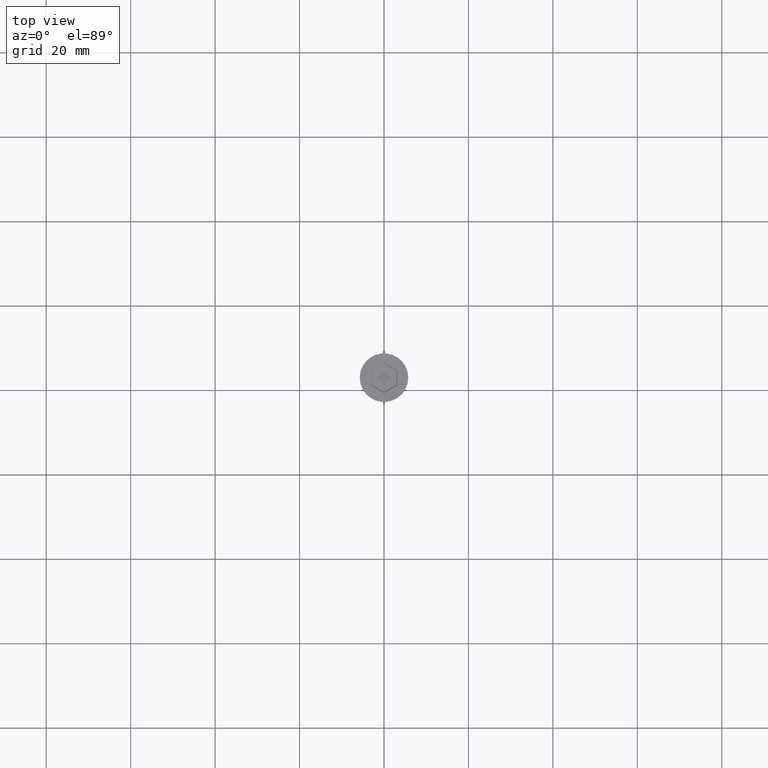
[diagram: clean part render]
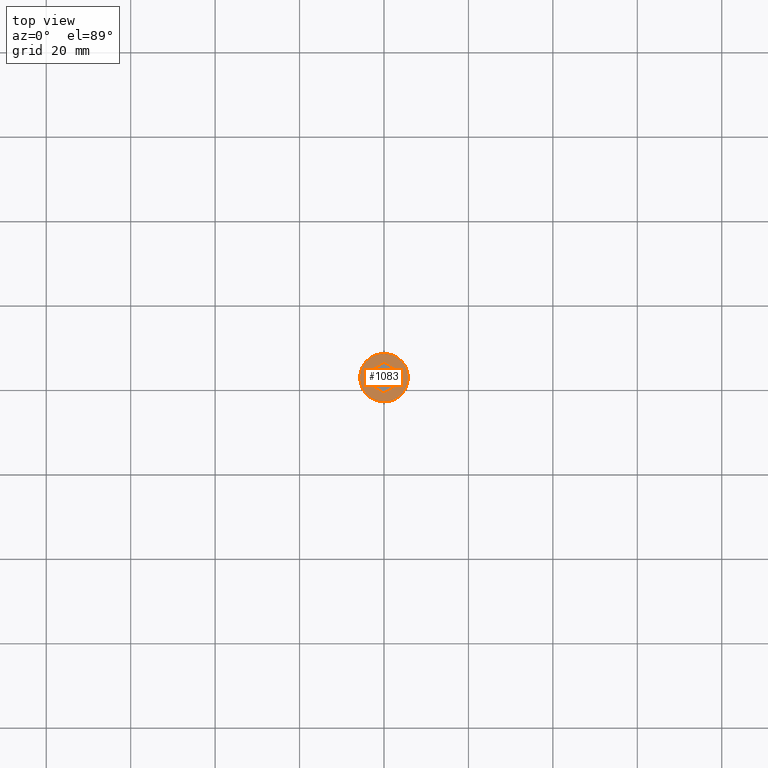
[diagram: same view with one face highlighted and labeled with its STEP entity id]
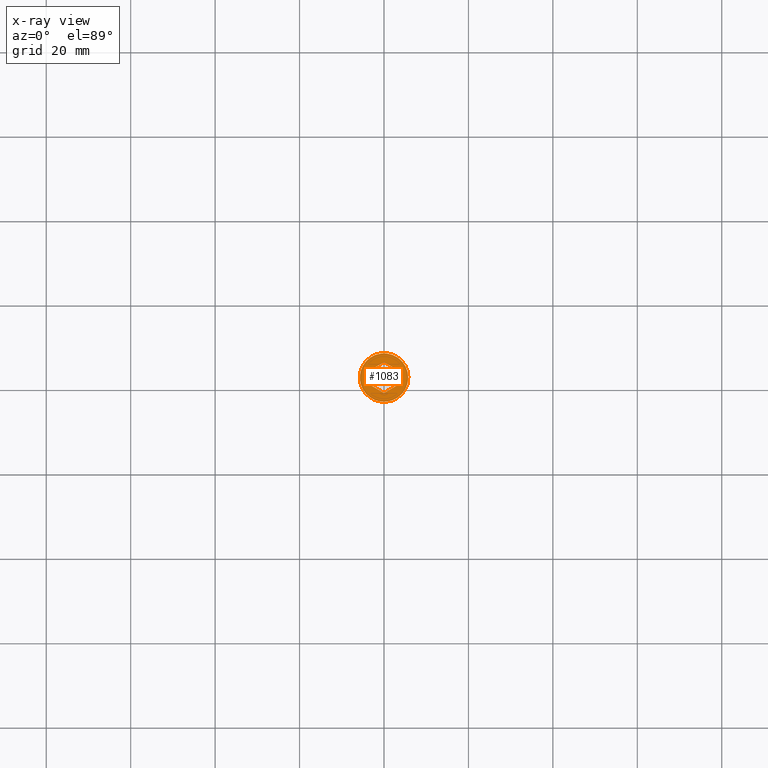
[diagram: x-ray of the same camera — body ghosted, the highlighted face saturated]
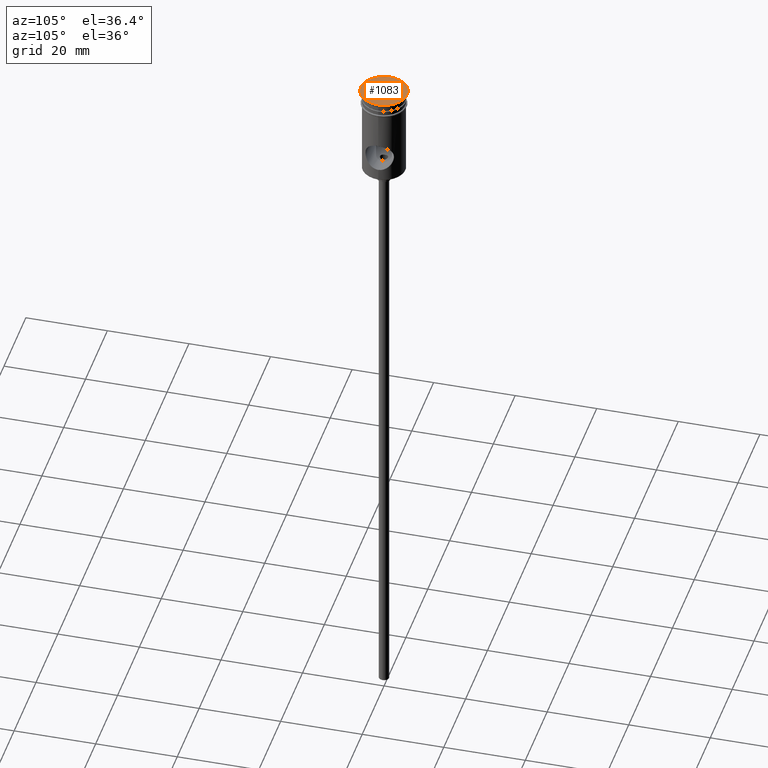
[diagram: same view with one face highlighted and labeled with its STEP entity id]
A machine part, top view. The second image highlights one B-rep face of the part: STEP entity #1083.
The next image is the same camera in x-ray: the body ghosted, the highlighted face saturated — about 0% of this face is hidden behind the body in this view.
A second angle (auxiliary view) of the same face is appended — the face is thin or edge-on in the first view.
In plain terms, the highlighted planar face has unit normal (0, -0, 1).
Its self-contained STEP definition (entity closure, byte-faithful):
#58 = DIRECTION ( 'NONE',  ( 1.000000000000000000, 0.000000000000000000, 0.000000000000000000 ) ) ;
#69 = AXIS2_PLACEMENT_3D ( 'NONE', #576, #1279, #724 ) ;
#93 = CARTESIAN_POINT ( 'NONE',  ( -3.049999999999989608, -1.876388374866265085, 0.000000000000000000 ) ) ;
#114 = DIRECTION ( 'NONE',  ( 0.8660254037844385966, 0.5000000000000001110, 0.000000000000000000 ) ) ;
#145 = EDGE_CURVE ( 'NONE', #860, #631, #1337, .T. ) ;
#151 = EDGE_CURVE ( 'NONE', #1099, #349, #607, .T. ) ;
#169 = LINE ( 'NONE', #1187, #712 ) ;
#238 = CARTESIAN_POINT ( 'NONE',  ( 3.149999999999978151, -1.818653347947309262, 0.000000000000000000 ) ) ;
#291 = DIRECTION ( 'NONE',  ( -0.8660254037844387076, -0.4999999999999998890, 0.000000000000000000 ) ) ;
#323 = ORIENTED_EDGE ( 'NONE', *, *, #145, .T. ) ;
#327 = DIRECTION ( 'NONE',  ( 0.000000000000000000, 1.000000000000000000, 0.000000000000000000 ) ) ;
#349 = VERTEX_POINT ( 'NONE', #1354 ) ;
#359 = DIRECTION ( 'NONE',  ( -2.546295930062981593E-16, -1.000000000000000000, 0.000000000000000000 ) ) ;
#363 = CARTESIAN_POINT ( 'NONE',  ( 0.000000000000000000, 0.000000000000000000, 0.000000000000000000 ) ) ;
#386 = AXIS2_PLACEMENT_3D ( 'NONE', #363, #1253, #704 ) ;
#438 = CARTESIAN_POINT ( 'NONE',  ( 0.09999999999998870903, -3.579571668975661591, 0.000000000000000000 ) ) ;
#461 = EDGE_CURVE ( 'NONE', #631, #860, #736, .T. ) ;
#507 = EDGE_CURVE ( 'NONE', #1055, #1044, #169, .T. ) ;
#528 = ORIENTED_EDGE ( 'NONE', *, *, #1264, .T. ) ;
#561 = DIRECTION ( 'NONE',  ( -0.8660254037844385966, 0.5000000000000001110, 0.000000000000000000 ) ) ;
#566 = EDGE_CURVE ( 'NONE', #1096, #1099, #658, .T. ) ;
#568 = FACE_BOUND ( 'NONE', #1394, .T. ) ;
#576 = CARTESIAN_POINT ( 'NONE',  ( 0.000000000000000000, 0.000000000000000000, 0.000000000000000000 ) ) ;
#579 = CARTESIAN_POINT ( 'NONE',  ( 3.149999999999979039, 1.818653347947308596, 0.000000000000000000 ) ) ;
#607 = LINE ( 'NONE', #998, #664 ) ;
#623 = DIRECTION ( 'NONE',  ( 0.8660254037844387076, -0.4999999999999998890, 0.000000000000000000 ) ) ;
#631 = VERTEX_POINT ( 'NONE', #1317 ) ;
#658 = LINE ( 'NONE', #93, #1107 ) ;
#664 = VECTOR ( 'NONE', #327, 1000.000000000000000 ) ;
#675 = LINE ( 'NONE', #1235, #1103 ) ;
#677 = CARTESIAN_POINT ( 'NONE',  ( -5.257856505504653693E-16, -3.637306695894617636, 0.000000000000000000 ) ) ;
#704 = DIRECTION ( 'NONE',  ( 1.000000000000000000, 0.000000000000000000, 0.000000000000000000 ) ) ;
#711 = VERTEX_POINT ( 'NONE', #238 ) ;
#712 = VECTOR ( 'NONE', #623, 1000.000000000000000 ) ;
#724 = DIRECTION ( 'NONE',  ( 1.000000000000000000, 0.000000000000000000, 0.000000000000000000 ) ) ;
#736 = CIRCLE ( 'NONE', #872, 5.750000000000000000 ) ;
#755 = ORIENTED_EDGE ( 'NONE', *, *, #507, .T. ) ;
#778 = ORIENTED_EDGE ( 'NONE', *, *, #566, .T. ) ;
#829 = CARTESIAN_POINT ( 'NONE',  ( 5.750000000000000000, 0.000000000000000000, 0.000000000000000000 ) ) ;
#832 = ORIENTED_EDGE ( 'NONE', *, *, #1408, .T. ) ;
#845 = ORIENTED_EDGE ( 'NONE', *, *, #871, .T. ) ;
#846 = VECTOR ( 'NONE', #291, 1000.000000000000000 ) ;
#857 = DIRECTION ( 'NONE',  ( -0.000000000000000000, -0.000000000000000000, 1.000000000000000000 ) ) ;
#860 = VERTEX_POINT ( 'NONE', #829 ) ;
#871 = EDGE_CURVE ( 'NONE', #1044, #711, #941, .T. ) ;
#872 = AXIS2_PLACEMENT_3D ( 'NONE', #1068, #857, #58 ) ;
#877 = CARTESIAN_POINT ( 'NONE',  ( -3.149999999999978595, -1.818653347947308818, 0.000000000000000000 ) ) ;
#894 = PLANE ( 'NONE',  #386 ) ;
#918 = CARTESIAN_POINT ( 'NONE',  ( 3.149999999999978151, -1.703183294109396284, 0.000000000000000000 ) ) ;
#941 = LINE ( 'NONE', #918, #1404 ) ;
#987 = LINE ( 'NONE', #438, #846 ) ;
#998 = CARTESIAN_POINT ( 'NONE',  ( -3.149999999999978595, 1.703183294109395840, 0.000000000000000000 ) ) ;
#1044 = VERTEX_POINT ( 'NONE', #579 ) ;
#1055 = VERTEX_POINT ( 'NONE', #1126 ) ;
#1068 = CARTESIAN_POINT ( 'NONE',  ( 0.000000000000000000, 0.000000000000000000, 0.000000000000000000 ) ) ;
#1083 = ADVANCED_FACE ( 'NONE', ( #568, #1138 ), #894, .T. ) ;
#1096 = VERTEX_POINT ( 'NONE', #677 ) ;
#1099 = VERTEX_POINT ( 'NONE', #877 ) ;
#1103 = VECTOR ( 'NONE', #114, 1000.000000000000114 ) ;
#1107 = VECTOR ( 'NONE', #561, 1000.000000000000114 ) ;
#1126 = CARTESIAN_POINT ( 'NONE',  ( -3.163467028841980443E-16, 3.637306695894617192, 0.000000000000000000 ) ) ;
#1138 = FACE_OUTER_BOUND ( 'NONE', #1417, .T. ) ;
#1187 = CARTESIAN_POINT ( 'NONE',  ( 3.049999999999990052, 1.876388374866264863, 0.000000000000000000 ) ) ;
#1235 = CARTESIAN_POINT ( 'NONE',  ( -0.09999999999998937517, 3.579571668975661147, 0.000000000000000000 ) ) ;
#1253 = DIRECTION ( 'NONE',  ( 0.000000000000000000, -0.000000000000000000, 1.000000000000000000 ) ) ;
#1264 = EDGE_CURVE ( 'NONE', #711, #1096, #987, .T. ) ;
#1279 = DIRECTION ( 'NONE',  ( -0.000000000000000000, -0.000000000000000000, 1.000000000000000000 ) ) ;
#1295 = ORIENTED_EDGE ( 'NONE', *, *, #151, .T. ) ;
#1317 = CARTESIAN_POINT ( 'NONE',  ( -5.750000000000000000, 7.041719095097280880E-16, 0.000000000000000000 ) ) ;
#1337 = CIRCLE ( 'NONE', #69, 5.750000000000000000 ) ;
#1354 = CARTESIAN_POINT ( 'NONE',  ( -3.149999999999978595, 1.818653347947308374, 0.000000000000000000 ) ) ;
#1394 = EDGE_LOOP ( 'NONE', ( #778, #1295, #832, #755, #845, #528 ) ) ;
#1404 = VECTOR ( 'NONE', #359, 1000.000000000000000 ) ;
#1408 = EDGE_CURVE ( 'NONE', #349, #1055, #675, .T. ) ;
#1417 = EDGE_LOOP ( 'NONE', ( #323, #1422 ) ) ;
#1422 = ORIENTED_EDGE ( 'NONE', *, *, #461, .T. ) ;